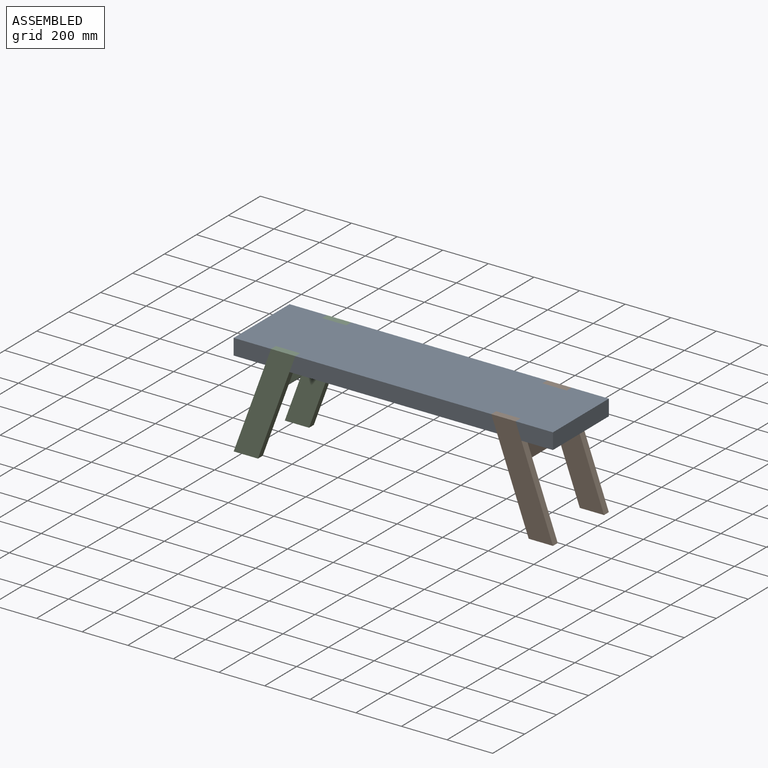
[diagram: assembled view]
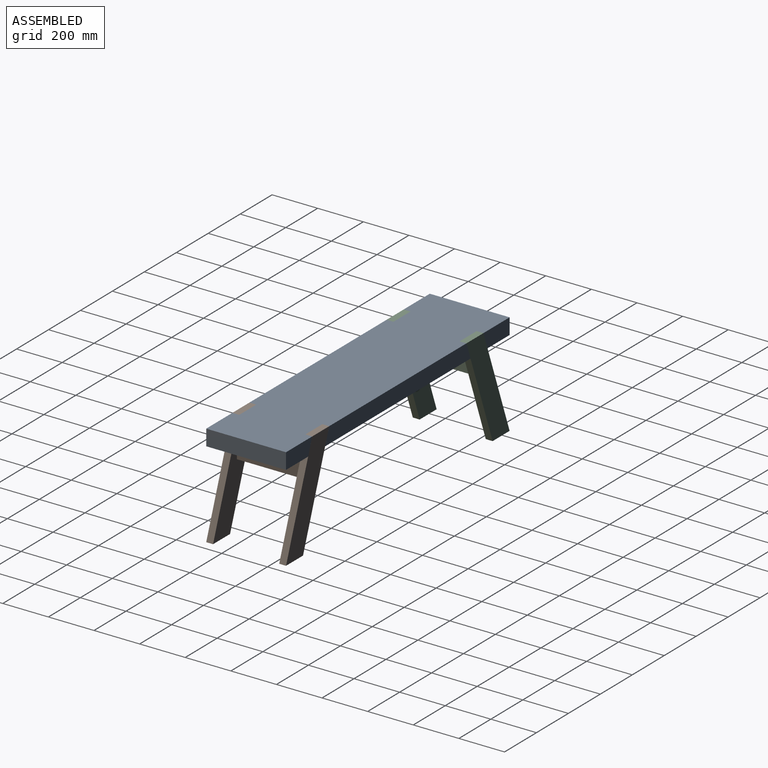
[diagram: assembled view, second angle]
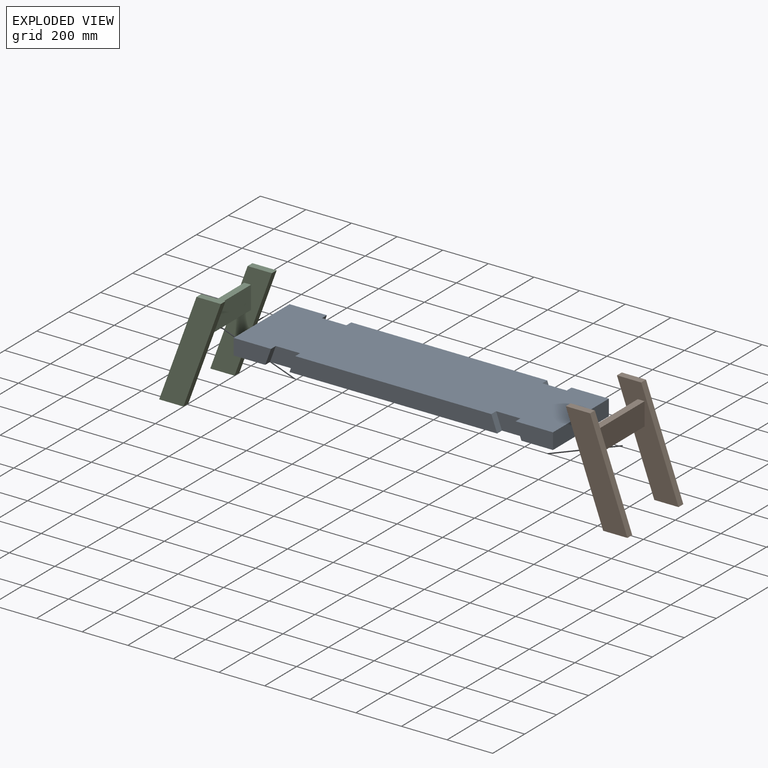
[diagram: exploded view]
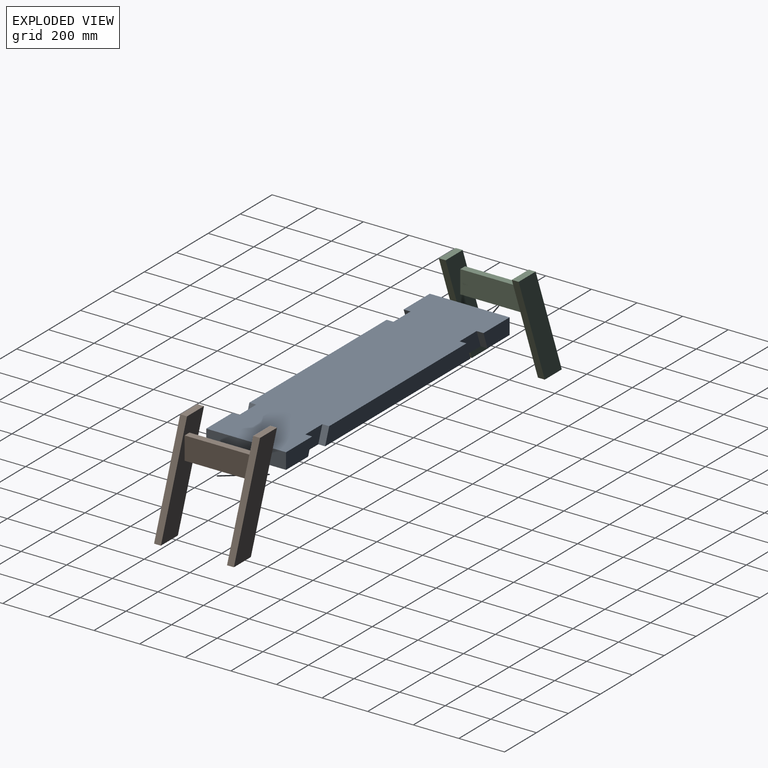
[diagram: exploded view, second angle]
ASSEMBLY  parts=3 mates=2
PART A: 22 faces, bbox 1400x350x70 mm
  f0: plane 163.79x70mm, normal (0,-1,0), area 10573.3mm2, adj f2,f5,f6,f19
  f1: plane 163.79x70mm, normal (0,-1,0), area 10573.3mm2, adj f2,f6,f7,f16
  f2: plane 1400x350mm, normal (0,0,-1), area 477229.9mm2, adj f0,f1,f3,f4,f5,f7,f8,f9
  f3: plane 163.79x70mm, normal (0,1,0), area 10573.3mm2, adj f2,f5,f6,f13
  f4: plane 163.79x70mm, normal (0,1,0), area 10573.3mm2, adj f2,f6,f7,f10
  f5: plane 350x70mm, normal (1,0,0), area 24500mm2, adj f0,f2,f3,f6
  f6: plane 1400x350mm, normal (0,0,1), area 477229.9mm2, adj f0,f1,f3,f4,f5,f7,f8,f9
  f7: plane 350x70mm, normal (-1,0,0), area 24500mm2, adj f1,f2,f4,f6
  f8: plane 910.55x70mm, normal (0,-1,0), area 61954.8mm2, adj f2,f6,f17,f20
  f9: plane 910.55x70mm, normal (0,1,0), area 61954.8mm2, adj f2,f6,f11,f14
  f10: plane 70x30mm, normal (0.94,0,-0.34), area 2234.8mm2, adj f2,f4,f6,f12
  f11: plane 70x30mm, normal (-0.94,0,0.34), area 2234.8mm2, adj f2,f6,f9,f12
  f12: plane 131.9x70mm, normal (0,1,0), area 7449.2mm2, adj f2,f6,f10,f11
  f13: plane 70x30mm, normal (-0.94,0,-0.34), area 2234.8mm2, adj f2,f3,f6,f15
  f14: plane 70x30mm, normal (0.94,0,0.34), area 2234.8mm2, adj f2,f6,f9,f15
  f15: plane 131.9x70mm, normal (0,1,0), area 7449.2mm2, adj f2,f6,f13,f14
  f16: plane 70x30mm, normal (0.94,0,-0.34), area 2234.8mm2, adj f1,f2,f6,f18
  f17: plane 70x30mm, normal (-0.94,0,0.34), area 2234.8mm2, adj f2,f6,f8,f18
  f18: plane 131.9x70mm, normal (0,-1,0), area 7449.2mm2, adj f2,f6,f16,f17
  f19: plane 70x30mm, normal (-0.94,0,-0.34), area 2234.8mm2, adj f0,f2,f6,f21
  f20: plane 70x30mm, normal (0.94,0,0.34), area 2234.8mm2, adj f2,f6,f8,f21
  f21: plane 131.9x70mm, normal (0,-1,0), area 7449.2mm2, adj f2,f6,f19,f20
PART B: 16 faces, bbox 270.2x350x450 mm
  f0: plane 290x30mm, normal (0,0,-1), area 8700mm2, adj f2,f3,f9,f15
  f1: plane 290x30mm, normal (0,0,1), area 8700mm2, adj f2,f3,f9,f15
  f2: plane 290x100mm, normal (1,0,0), area 29000mm2, adj f0,f1,f9,f15
  f3: plane 290x100mm, normal (-1,0,0), area 29000mm2, adj f0,f1,f9,f15
  f4: plane 106.42x30mm, normal (0,0,1), area 3192.5mm2, adj f5,f7,f8,f9
  f5: plane 450x163.79mm, normal (-0.94,0,0.34), area 14366.4mm2, adj f4,f6,f8,f9
  f6: plane 106.42x30mm, normal (0,0,-1), area 3192.5mm2, adj f5,f7,f8,f9
  f7: plane 450x163.79mm, normal (0.94,0,-0.34), area 14366.4mm2, adj f4,f6,f8,f9
  f8: plane 450x270.2mm, normal (0,-1,0), area 47888mm2, adj f4,f5,f6,f7
  f9: plane 450x270.2mm, normal (0,1,0), area 44888mm2, adj f0,f1,f2,f3,f4,f5,f6,f7
  f10: plane 106.42x30mm, normal (0,0,1), area 3192.5mm2, adj f11,f13,f14,f15
  f11: plane 450x163.79mm, normal (-0.94,0,0.34), area 14366.4mm2, adj f10,f12,f14,f15
  f12: plane 106.42x30mm, normal (0,0,-1), area 3192.5mm2, adj f11,f13,f14,f15
  f13: plane 450x163.79mm, normal (0.94,0,-0.34), area 14366.4mm2, adj f10,f12,f14,f15
  f14: plane 450x270.2mm, normal (0,1,0), area 47888mm2, adj f10,f11,f12,f13
  f15: plane 450x270.2mm, normal (0,-1,0), area 44888mm2, adj f0,f1,f2,f3,f10,f11,f12,f13
PART C: same geometry as B
PLACE A rot(axis=(0,0.24,0.97),0deg) t=(94.24,-297.01,-450.35)mm
PLACE B rot(axis=(0,0,-1),180deg) t=(630.46,-297.01,-535.35)mm
PLACE C t=(-441.97,-297.01,-535.35)mm
MATE fastened C.f13 <-> A.f11  axis (0.94,0,-0.34) through (-335.55,-137.01,-415.35)mm
MATE fastened A.f14 <-> B.f7  axis (0.94,0,0.34) through (524.04,-137.01,-415.35)mm
